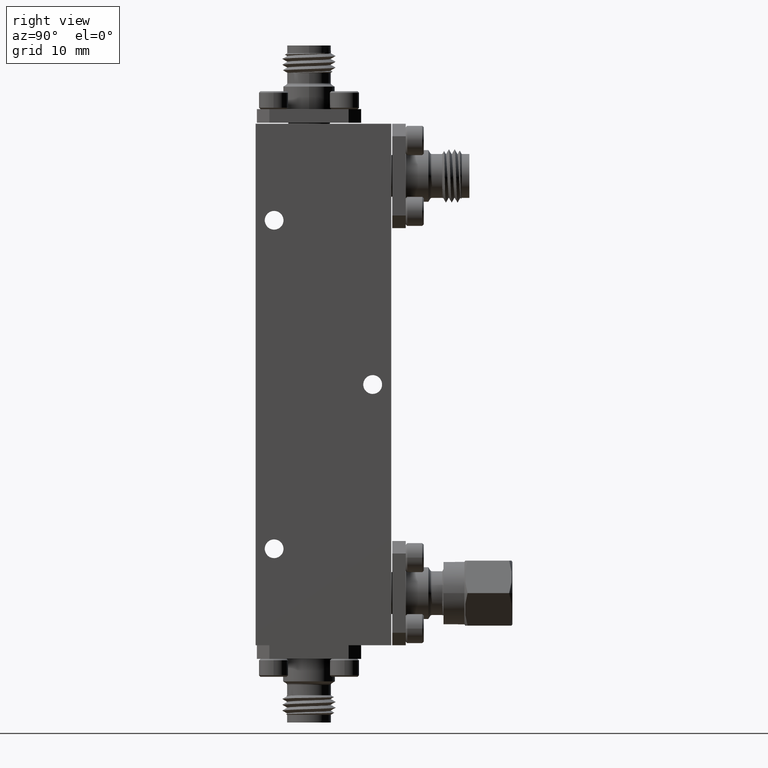
[diagram: clean part render]
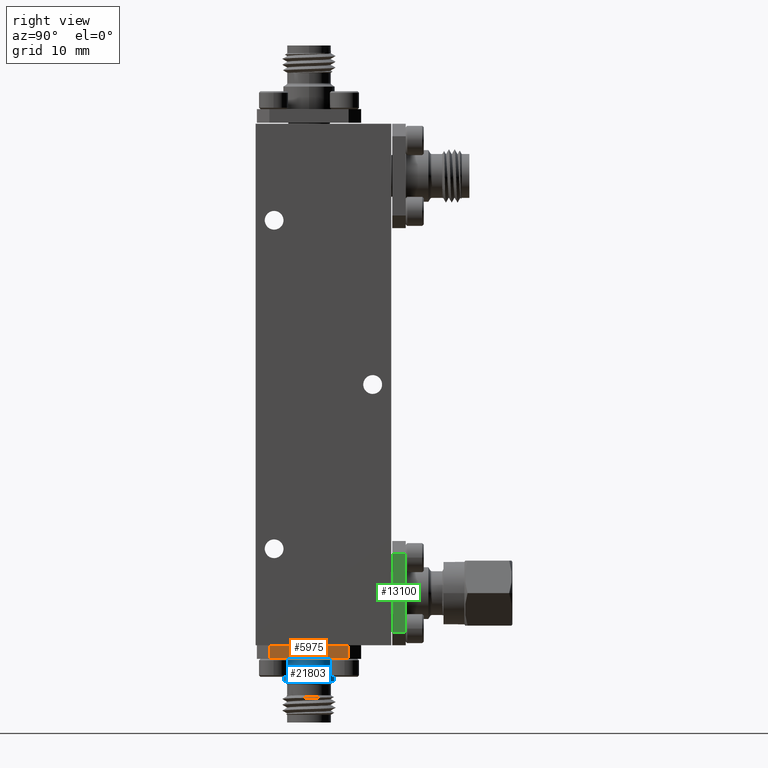
[diagram: same view with three faces highlighted in distinct colors, each labeled with its STEP entity id]
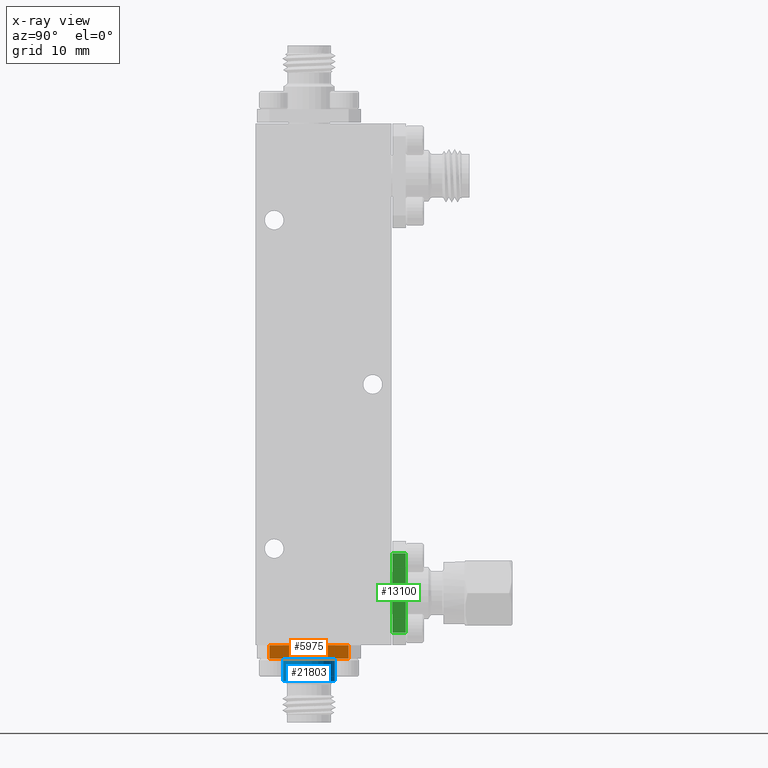
[diagram: x-ray of the same camera — body ghosted, the three highlighted faces saturated]
A machine part, right view with three faces highlighted in distinct colors.
The next image is the same camera in x-ray (body ghosted, the three faces saturated) — at least one of them is partly hidden behind the body in this view.
Their STEP definitions:

[orange] entity #5975 — the highlighted planar face has unit normal (-1, -0, -0).
#1359 = EDGE_CURVE ( 'NONE', #14977, #11592, #11980, .T. ) ;
#1739 = PLANE ( 'NONE',  #16721 ) ;
#3645 = VECTOR ( 'NONE', #8420, 39.37007874015748100 ) ;
#4992 = DIRECTION ( 'NONE',  ( -1.000000000000000000, -7.727613666512450400E-016, -5.551115123125819700E-017 ) ) ;
#5196 = CARTESIAN_POINT ( 'NONE',  ( -1.085499139784813000, 0.3186979808095787800, -1.012818981677863700 ) ) ;
#5446 = EDGE_CURVE ( 'NONE', #20150, #11803, #21546, .T. ) ;
#5488 = ORIENTED_EDGE ( 'NONE', *, *, #10400, .T. ) ;
#5671 = VECTOR ( 'NONE', #20406, 39.37007874015748100 ) ;
#5842 = CARTESIAN_POINT ( 'NONE',  ( -1.085499139784811900, 0.3186979808095786700, -0.9478189816778630500 ) ) ;
#5924 = EDGE_LOOP ( 'NONE', ( #16601, #13526, #5488, #13633 ) ) ;
#5975 = ADVANCED_FACE ( 'NONE', ( #8125 ), #1739, .F. ) ;
#6895 = VECTOR ( 'NONE', #7006, 39.37007874015748100 ) ;
#7006 = DIRECTION ( 'NONE',  ( 2.775557561562891400E-016, -1.256990930850166700E-032, -1.000000000000000000 ) ) ;
#7838 = LINE ( 'NONE', #20473, #5671 ) ;
#8125 = FACE_OUTER_BOUND ( 'NONE', #5924, .T. ) ;
#8210 = CARTESIAN_POINT ( 'NONE',  ( -1.085499139784811700, 0.7586979808095785100, -0.9478189816778630500 ) ) ;
#8420 = DIRECTION ( 'NONE',  ( 7.727613666512450400E-016, -1.000000000000000000, -4.996003610813203400E-016 ) ) ;
#8537 = LINE ( 'NONE', #8210, #3645 ) ;
#9542 = CARTESIAN_POINT ( 'NONE',  ( -1.085499139784813000, 0.6986979808095785700, -1.012818981677863700 ) ) ;
#10400 = EDGE_CURVE ( 'NONE', #11803, #14977, #8537, .T. ) ;
#10725 = DIRECTION ( 'NONE',  ( -2.775557561562891400E-016, 1.256990930850166700E-032, 1.000000000000000000 ) ) ;
#11423 = EDGE_CURVE ( 'NONE', #20150, #11592, #7838, .T. ) ;
#11503 = CARTESIAN_POINT ( 'NONE',  ( -1.085499139784813000, 0.6986979808095786800, -1.012818981677863700 ) ) ;
#11592 = VERTEX_POINT ( 'NONE', #19131 ) ;
#11803 = VERTEX_POINT ( 'NONE', #12591 ) ;
#11980 = LINE ( 'NONE', #5196, #6895 ) ;
#12591 = CARTESIAN_POINT ( 'NONE',  ( -1.085499139784812200, 0.6986979808095785700, -0.9478189816778632700 ) ) ;
#13526 = ORIENTED_EDGE ( 'NONE', *, *, #5446, .T. ) ;
#13633 = ORIENTED_EDGE ( 'NONE', *, *, #1359, .T. ) ;
#14977 = VERTEX_POINT ( 'NONE', #5842 ) ;
#15259 = CARTESIAN_POINT ( 'NONE',  ( -1.085499139784813000, 0.7586979808095785100, -1.012818981677863700 ) ) ;
#16601 = ORIENTED_EDGE ( 'NONE', *, *, #11423, .F. ) ;
#16721 = AXIS2_PLACEMENT_3D ( 'NONE', #15259, #4992, #20519 ) ;
#19131 = CARTESIAN_POINT ( 'NONE',  ( -1.085499139784813000, 0.3186979808095787800, -1.012818981677863700 ) ) ;
#20150 = VERTEX_POINT ( 'NONE', #11503 ) ;
#20406 = DIRECTION ( 'NONE',  ( 7.727613666512450400E-016, -1.000000000000000000, -4.996003610813203400E-016 ) ) ;
#20473 = CARTESIAN_POINT ( 'NONE',  ( -1.085499139784813000, 0.7586979808095785100, -1.012818981677863700 ) ) ;
#20519 = DIRECTION ( 'NONE',  ( -7.727613666512450400E-016, 1.000000000000000000, 4.996003610813203400E-016 ) ) ;
#20752 = VECTOR ( 'NONE', #10725, 39.37007874015748100 ) ;
#21546 = LINE ( 'NONE', #9542, #20752 ) ;

[blue] entity #21803 — the highlighted cylindrical surface (edge-blend (fillet) strip) has radius 3.1496 mm, axis along (-0, 0, 1).
#227 = DIRECTION ( 'NONE',  ( 0.0000000000000000000, -1.000000000000000000, 0.0000000000000000000 ) ) ;
#2151 = DIRECTION ( 'NONE',  ( -2.203103220696985900E-015, 1.000000000000000000, 0.0000000000000000000 ) ) ;
#2296 = VERTEX_POINT ( 'NONE', #13203 ) ;
#3727 = AXIS2_PLACEMENT_3D ( 'NONE', #11304, #14743, #4441 ) ;
#4441 = DIRECTION ( 'NONE',  ( 0.0000000000000000000, 1.000000000000000000, 0.0000000000000000000 ) ) ;
#4499 = ORIENTED_EDGE ( 'NONE', *, *, #17428, .T. ) ;
#4676 = CIRCLE ( 'NONE', #3727, 0.1239999999999999600 ) ;
#5427 = VERTEX_POINT ( 'NONE', #15737 ) ;
#5506 = ORIENTED_EDGE ( 'NONE', *, *, #9886, .F. ) ;
#8145 = CYLINDRICAL_SURFACE ( 'NONE', #17881, 0.1239999999999999600 ) ;
#8159 = CARTESIAN_POINT ( 'NONE',  ( -1.335499139784813000, 0.3846979808095784500, -1.132818981677863500 ) ) ;
#8669 = DIRECTION ( 'NONE',  ( -2.775557561562891800E-016, 1.256990930850167200E-032, 1.000000000000000000 ) ) ;
#9814 = DIRECTION ( 'NONE',  ( -2.775557561562891800E-016, 1.256990930850167200E-032, 1.000000000000000000 ) ) ;
#9816 = VERTEX_POINT ( 'NONE', #21506 ) ;
#9886 = EDGE_CURVE ( 'NONE', #11391, #5427, #16325, .T. ) ;
#9903 = VECTOR ( 'NONE', #9814, 39.37007874015748100 ) ;
#10461 = CARTESIAN_POINT ( 'NONE',  ( -1.335499139784813000, 0.6326979808095784000, -1.132818981677863500 ) ) ;
#10873 = DIRECTION ( 'NONE',  ( -2.775557561562891400E-016, 1.256990930850166700E-032, 1.000000000000000000 ) ) ;
#11092 = EDGE_LOOP ( 'NONE', ( #18912, #4499, #22227, #5506 ) ) ;
#11304 = CARTESIAN_POINT ( 'NONE',  ( -1.335499139784813300, 0.5086979808095784000, -1.012818981677863700 ) ) ;
#11391 = VERTEX_POINT ( 'NONE', #18325 ) ;
#13203 = CARTESIAN_POINT ( 'NONE',  ( -1.335499139784813000, 0.6326979808095785100, -1.120818981677863300 ) ) ;
#14743 = DIRECTION ( 'NONE',  ( 2.775557561562891400E-016, -1.256990930850166700E-032, -1.000000000000000000 ) ) ;
#15737 = CARTESIAN_POINT ( 'NONE',  ( -1.335499139784813000, 0.3846979808095784500, -1.012818981677863700 ) ) ;
#16054 = CARTESIAN_POINT ( 'NONE',  ( -1.335499139784813000, 0.5086979808095785100, -1.120818981677863300 ) ) ;
#16247 = AXIS2_PLACEMENT_3D ( 'NONE', #16054, #10873, #2151 ) ;
#16325 = LINE ( 'NONE', #8159, #9903 ) ;
#17297 = LINE ( 'NONE', #10461, #21330 ) ;
#17428 = EDGE_CURVE ( 'NONE', #2296, #9816, #17297, .T. ) ;
#17881 = AXIS2_PLACEMENT_3D ( 'NONE', #20485, #20630, #227 ) ;
#17887 = CIRCLE ( 'NONE', #16247, 0.1240000000000000300 ) ;
#18325 = CARTESIAN_POINT ( 'NONE',  ( -1.335499139784813000, 0.3846979808095784500, -1.120818981677863300 ) ) ;
#18641 = FACE_OUTER_BOUND ( 'NONE', #11092, .T. ) ;
#18912 = ORIENTED_EDGE ( 'NONE', *, *, #20201, .T. ) ;
#20201 = EDGE_CURVE ( 'NONE', #11391, #2296, #17887, .T. ) ;
#20485 = CARTESIAN_POINT ( 'NONE',  ( -1.335499139784813000, 0.5086979808095784000, -1.132818981677863500 ) ) ;
#20630 = DIRECTION ( 'NONE',  ( -2.775557561562891800E-016, 1.256990930850167200E-032, 1.000000000000000000 ) ) ;
#20947 = EDGE_CURVE ( 'NONE', #9816, #5427, #4676, .T. ) ;
#21330 = VECTOR ( 'NONE', #8669, 39.37007874015748100 ) ;
#21506 = CARTESIAN_POINT ( 'NONE',  ( -1.335499139784813000, 0.6326979808095784000, -1.012818981677863700 ) ) ;
#21803 = ADVANCED_FACE ( 'NONE', ( #18641 ), #8145, .T. ) ;
#22227 = ORIENTED_EDGE ( 'NONE', *, *, #20947, .T. ) ;

[green] entity #13100 — the highlighted planar face has unit normal (-1, -0, -0).
#91 = DIRECTION ( 'NONE',  ( 5.551115123125782700E-017, 1.000000000000000000, 1.215432671457254200E-063 ) ) ;
#368 = DIRECTION ( 'NONE',  ( -5.551115123125782700E-017, -1.000000000000000000, -1.215432671457254200E-063 ) ) ;
#422 = VECTOR ( 'NONE', #16286, 39.37007874015748100 ) ;
#701 = LINE ( 'NONE', #9404, #422 ) ;
#1363 = CARTESIAN_POINT ( 'NONE',  ( -1.085499139784813500, 0.9727924689985549800, -0.5078189816778634300 ) ) ;
#1421 = PLANE ( 'NONE',  #1895 ) ;
#1610 = EDGE_CURVE ( 'NONE', #16367, #2717, #701, .T. ) ;
#1895 = AXIS2_PLACEMENT_3D ( 'NONE', #6627, #15290, #18554 ) ;
#2016 = CARTESIAN_POINT ( 'NONE',  ( -1.085499139784813500, 0.9727924689985550900, -0.8878189816778635500 ) ) ;
#2629 = CARTESIAN_POINT ( 'NONE',  ( -1.085499139784812600, 0.9077924689985543700, -0.8878189816778635500 ) ) ;
#2717 = VERTEX_POINT ( 'NONE', #2629 ) ;
#3880 = VERTEX_POINT ( 'NONE', #1363 ) ;
#3994 = VERTEX_POINT ( 'NONE', #7149 ) ;
#4679 = ORIENTED_EDGE ( 'NONE', *, *, #9022, .T. ) ;
#5218 = VECTOR ( 'NONE', #368, 39.37007874015748100 ) ;
#6627 = CARTESIAN_POINT ( 'NONE',  ( -1.085499139784813500, 0.9727924689985549800, -0.4478189816778637100 ) ) ;
#7149 = CARTESIAN_POINT ( 'NONE',  ( -1.085499139784813500, 0.9727924689985550900, -0.8878189816778634400 ) ) ;
#9022 = EDGE_CURVE ( 'NONE', #2717, #3994, #18546, .T. ) ;
#9404 = CARTESIAN_POINT ( 'NONE',  ( -1.085499139784812200, 0.9077924689985543700, -0.4478189816778637100 ) ) ;
#9899 = FACE_OUTER_BOUND ( 'NONE', #19822, .T. ) ;
#11926 = LINE ( 'NONE', #19418, #5218 ) ;
#11935 = CARTESIAN_POINT ( 'NONE',  ( -1.085499139784812800, 0.9077924689985547000, -0.5078189816778635500 ) ) ;
#12960 = EDGE_CURVE ( 'NONE', #3880, #3994, #13122, .T. ) ;
#13067 = CARTESIAN_POINT ( 'NONE',  ( -1.085499139784813500, 0.9727924689985549800, -0.4478189816778637100 ) ) ;
#13100 = ADVANCED_FACE ( 'NONE', ( #9899 ), #1421, .F. ) ;
#13122 = LINE ( 'NONE', #13067, #21170 ) ;
#14855 = DIRECTION ( 'NONE',  ( 6.106226635438362000E-016, 4.996003610813204400E-016, -1.000000000000000000 ) ) ;
#14950 = ORIENTED_EDGE ( 'NONE', *, *, #16995, .T. ) ;
#15290 = DIRECTION ( 'NONE',  ( -1.000000000000000000, -1.665334536937731400E-016, -6.106226635438362900E-016 ) ) ;
#16286 = DIRECTION ( 'NONE',  ( 6.106226635438362000E-016, 4.996003610813204400E-016, -1.000000000000000000 ) ) ;
#16367 = VERTEX_POINT ( 'NONE', #11935 ) ;
#16776 = ORIENTED_EDGE ( 'NONE', *, *, #12960, .F. ) ;
#16880 = ORIENTED_EDGE ( 'NONE', *, *, #1610, .T. ) ;
#16995 = EDGE_CURVE ( 'NONE', #3880, #16367, #11926, .T. ) ;
#18546 = LINE ( 'NONE', #2016, #19588 ) ;
#18554 = DIRECTION ( 'NONE',  ( -6.106226635438362000E-016, -4.996003610813204400E-016, 1.000000000000000000 ) ) ;
#19418 = CARTESIAN_POINT ( 'NONE',  ( -1.085499139784813500, 0.9727924689985550900, -0.5078189816778636600 ) ) ;
#19588 = VECTOR ( 'NONE', #91, 39.37007874015748100 ) ;
#19822 = EDGE_LOOP ( 'NONE', ( #16776, #14950, #16880, #4679 ) ) ;
#21170 = VECTOR ( 'NONE', #14855, 39.37007874015748100 ) ;